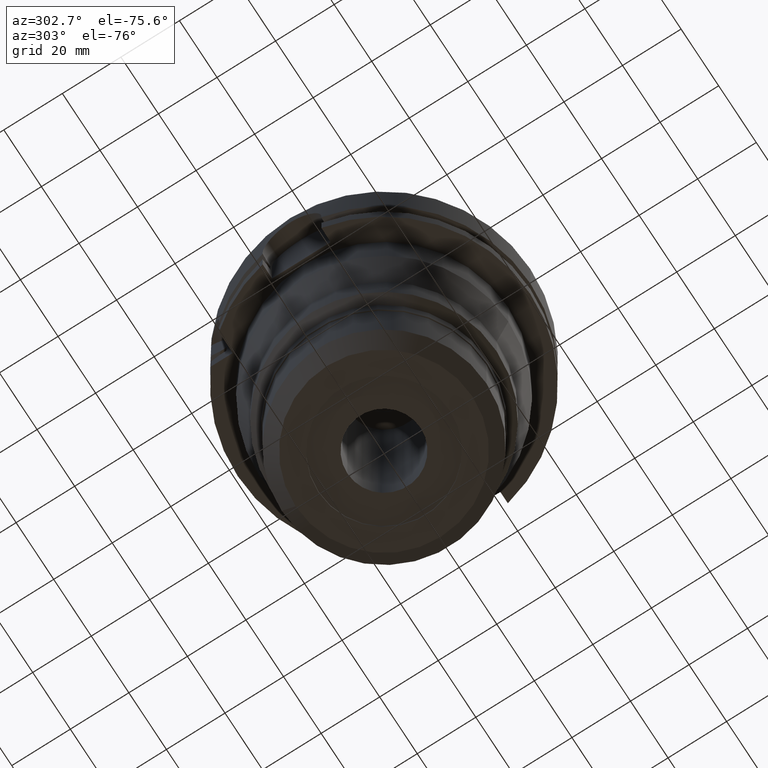
[diagram: clean part render]
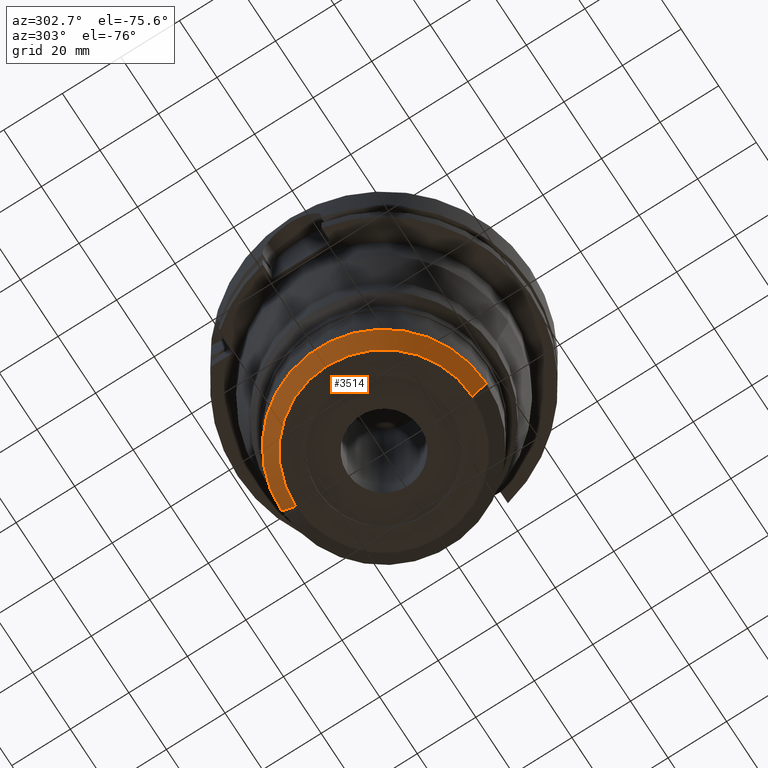
[diagram: same view with one face highlighted and labeled with its STEP entity id]
A machine part, auxiliary view. The second image highlights one B-rep face of the part: STEP entity #3514.
In plain terms, the highlighted conical surface has half-angle 45 deg.
Its self-contained STEP definition (entity closure, byte-faithful):
#1075=CARTESIAN_POINT('',(0.E0,0.E0,-1.056E2));
#1076=DIRECTION('',(0.E0,0.E0,1.E0));
#1077=DIRECTION('',(0.E0,1.E0,0.E0));
#1078=AXIS2_PLACEMENT_3D('',#1075,#1076,#1077);
#1099=DIRECTION('',(0.E0,-7.071067811865E-1,-7.071067811865E-1));
#1100=VECTOR('',#1099,6.788225099391E0);
#1101=CARTESIAN_POINT('',(0.E0,3.5E1,-1.008E2));
#1102=LINE('',#1101,#1100);
#1114=CARTESIAN_POINT('',(0.E0,0.E0,-1.008E2));
#1115=DIRECTION('',(0.E0,0.E0,1.E0));
#1116=DIRECTION('',(0.E0,1.E0,0.E0));
#1117=AXIS2_PLACEMENT_3D('',#1114,#1115,#1116);
#1122=DIRECTION('',(0.E0,7.071067811865E-1,-7.071067811865E-1));
#1123=VECTOR('',#1122,6.788225099391E0);
#1124=CARTESIAN_POINT('',(0.E0,-3.5E1,-1.008E2));
#1125=LINE('',#1124,#1123);
#2526=CARTESIAN_POINT('',(0.E0,-3.02E1,-1.056E2));
#2527=CARTESIAN_POINT('',(0.E0,3.02E1,-1.056E2));
#2528=VERTEX_POINT('',#2526);
#2529=VERTEX_POINT('',#2527);
#2530=CARTESIAN_POINT('',(0.E0,3.5E1,-1.008E2));
#2531=VERTEX_POINT('',#2530);
#2532=CARTESIAN_POINT('',(0.E0,-3.5E1,-1.008E2));
#2533=VERTEX_POINT('',#2532);
#3502=CARTESIAN_POINT('',(0.E0,0.E0,-1.032E2));
#3503=DIRECTION('',(0.E0,0.E0,1.E0));
#3504=DIRECTION('',(0.E0,1.E0,0.E0));
#3505=AXIS2_PLACEMENT_3D('',#3502,#3503,#3504);
#3506=CONICAL_SURFACE('',#3505,3.26E1,4.5E1);
#3507=ORIENTED_EDGE('',*,*,#3492,.F.);
#3509=ORIENTED_EDGE('',*,*,#3508,.T.);
#3510=ORIENTED_EDGE('',*,*,#3495,.T.);
#3511=ORIENTED_EDGE('',*,*,#3478,.F.);
#3512=EDGE_LOOP('',(#3507,#3509,#3510,#3511));
#3513=FACE_OUTER_BOUND('',#3512,.F.);
#1079=CIRCLE('',#1078,3.02E1);
#1118=CIRCLE('',#1117,3.5E1);
#3478=EDGE_CURVE('',#2529,#2528,#1079,.T.);
#3492=EDGE_CURVE('',#2531,#2529,#1102,.T.);
#3495=EDGE_CURVE('',#2533,#2528,#1125,.T.);
#3508=EDGE_CURVE('',#2531,#2533,#1118,.T.);
#3514=ADVANCED_FACE('',(#3513),#3506,.T.);